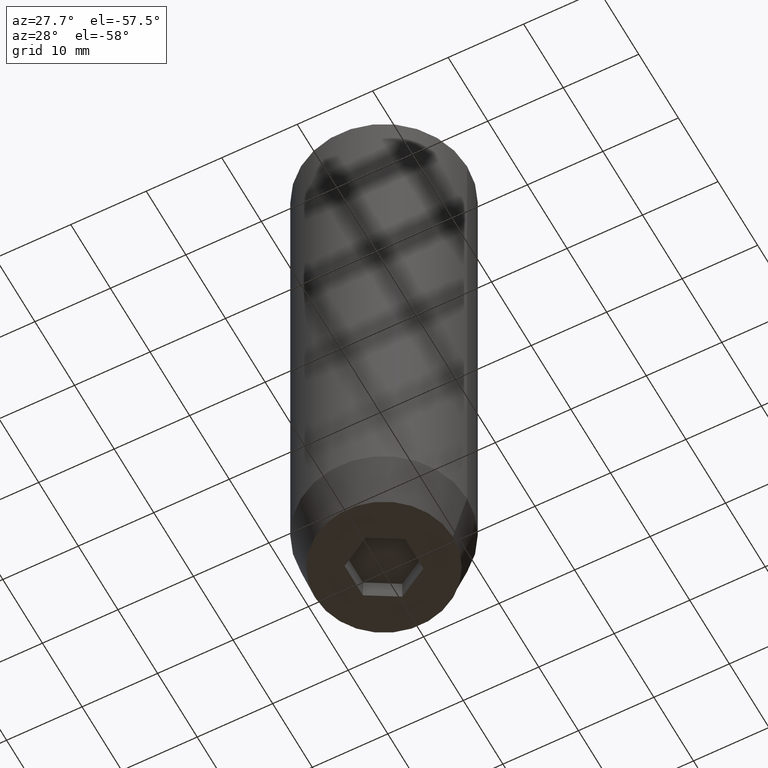
[diagram: clean part render]
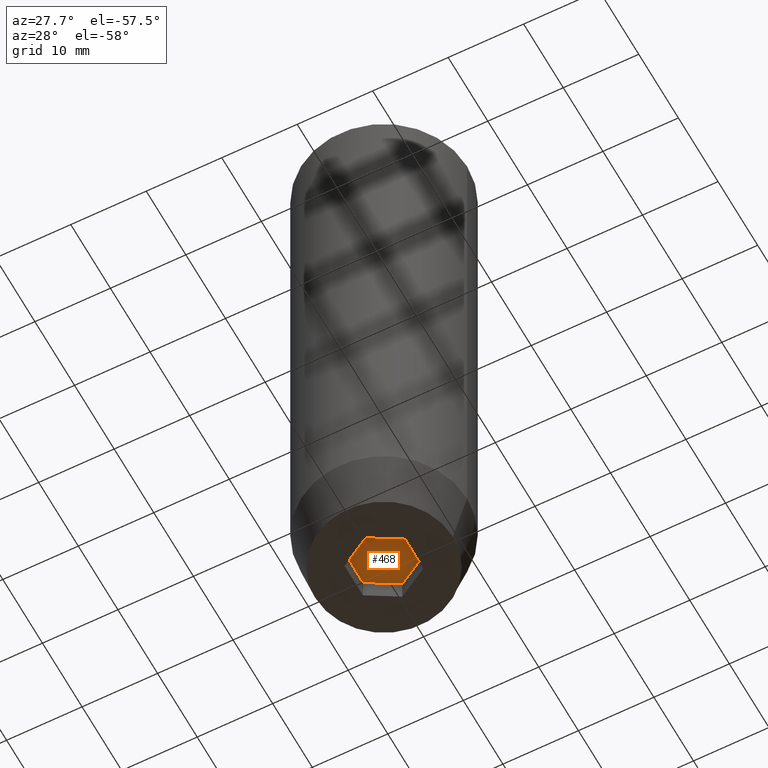
[diagram: same view with one face highlighted and labeled with its STEP entity id]
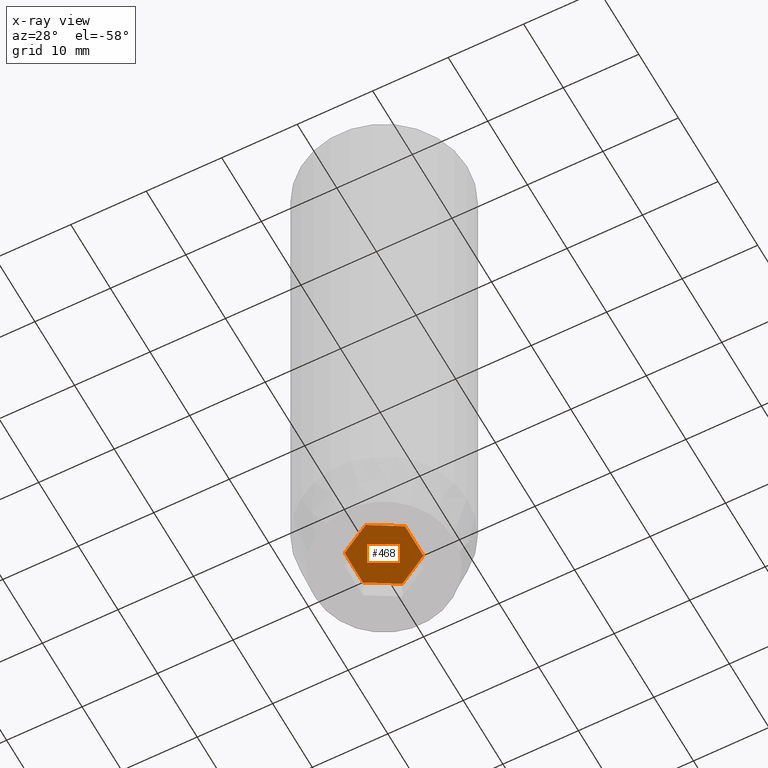
[diagram: x-ray of the same camera — body ghosted, the highlighted face saturated]
A machine part, auxiliary view. The second image highlights one B-rep face of the part: STEP entity #468.
The next image is the same camera in x-ray: the body ghosted, the highlighted face saturated — about 0% of this face is hidden behind the body in this view.
In plain terms, the highlighted planar face has unit normal (0, 0, -1).
Its self-contained STEP definition (entity closure, byte-faithful):
#15 = CARTESIAN_POINT ( 'NONE',  ( 2.000000000000000444, 3.464101615137754386, -77.20000000000001705 ) ) ;
#17 = VERTEX_POINT ( 'NONE', #396 ) ;
#22 = EDGE_CURVE ( 'NONE', #160, #135, #353, .T. ) ;
#26 = EDGE_LOOP ( 'NONE', ( #503, #431, #478, #232, #529, #328 ) ) ;
#48 = DIRECTION ( 'NONE',  ( -0.8660254037844384856, 0.5000000000000002220, 0.000000000000000000 ) ) ;
#78 = CARTESIAN_POINT ( 'NONE',  ( -2.000000000000000000, 3.464101615137754830, -77.20000000000001705 ) ) ;
#81 = CARTESIAN_POINT ( 'NONE',  ( 2.000000000000000888, -3.464101615137754386, -77.20000000000001705 ) ) ;
#82 = EDGE_CURVE ( 'NONE', #561, #579, #96, .T. ) ;
#85 = VECTOR ( 'NONE', #355, 1000.000000000000000 ) ;
#95 = DIRECTION ( 'NONE',  ( 0.8660254037844385966, -0.5000000000000001110, 0.000000000000000000 ) ) ;
#96 = LINE ( 'NONE', #101, #248 ) ;
#101 = CARTESIAN_POINT ( 'NONE',  ( 4.000000000000000000, 0.000000000000000000, -77.20000000000001705 ) ) ;
#135 = VERTEX_POINT ( 'NONE', #277 ) ;
#148 = VECTOR ( 'NONE', #537, 1000.000000000000114 ) ;
#160 = VERTEX_POINT ( 'NONE', #492 ) ;
#163 = VECTOR ( 'NONE', #48, 1000.000000000000114 ) ;
#186 = CARTESIAN_POINT ( 'NONE',  ( 4.000000000000000000, 2.309401076758503368, -77.20000000000001705 ) ) ;
#194 = LINE ( 'NONE', #15, #378 ) ;
#221 = EDGE_CURVE ( 'NONE', #579, #257, #356, .T. ) ;
#226 = CARTESIAN_POINT ( 'NONE',  ( 0.000000000000000000, 0.000000000000000000, -77.20000000000001705 ) ) ;
#232 = ORIENTED_EDGE ( 'NONE', *, *, #221, .T. ) ;
#248 = VECTOR ( 'NONE', #476, 1000.000000000000000 ) ;
#257 = VERTEX_POINT ( 'NONE', #276 ) ;
#263 = CARTESIAN_POINT ( 'NONE',  ( -2.000000000000000888, -3.464101615137754386, -77.20000000000001705 ) ) ;
#271 = DIRECTION ( 'NONE',  ( 0.000000000000000000, 0.000000000000000000, -1.000000000000000000 ) ) ;
#276 = CARTESIAN_POINT ( 'NONE',  ( 4.336808689942017736E-16, -4.618802153517006737, -77.20000000000001705 ) ) ;
#277 = CARTESIAN_POINT ( 'NONE',  ( 0.000000000000000000, 4.618802153517006737, -77.20000000000001705 ) ) ;
#308 = LINE ( 'NONE', #263, #163 ) ;
#316 = CARTESIAN_POINT ( 'NONE',  ( -4.000000000000000000, 0.000000000000000000, -77.20000000000001705 ) ) ;
#328 = ORIENTED_EDGE ( 'NONE', *, *, #449, .T. ) ;
#353 = LINE ( 'NONE', #78, #475 ) ;
#355 = DIRECTION ( 'NONE',  ( 0.000000000000000000, 1.000000000000000000, 0.000000000000000000 ) ) ;
#356 = LINE ( 'NONE', #81, #148 ) ;
#378 = VECTOR ( 'NONE', #95, 1000.000000000000000 ) ;
#396 = CARTESIAN_POINT ( 'NONE',  ( -4.000000000000000000, -2.309401076758503368, -77.20000000000001705 ) ) ;
#400 = FACE_OUTER_BOUND ( 'NONE', #26, .T. ) ;
#416 = LINE ( 'NONE', #316, #85 ) ;
#431 = ORIENTED_EDGE ( 'NONE', *, *, #586, .T. ) ;
#449 = EDGE_CURVE ( 'NONE', #17, #160, #416, .T. ) ;
#450 = EDGE_CURVE ( 'NONE', #257, #17, #308, .T. ) ;
#456 = DIRECTION ( 'NONE',  ( -1.000000000000000000, 0.000000000000000000, -0.000000000000000000 ) ) ;
#468 = ADVANCED_FACE ( 'NONE', ( #400 ), #587, .T. ) ;
#475 = VECTOR ( 'NONE', #538, 999.9999999999998863 ) ;
#476 = DIRECTION ( 'NONE',  ( 0.000000000000000000, -1.000000000000000000, 0.000000000000000000 ) ) ;
#478 = ORIENTED_EDGE ( 'NONE', *, *, #82, .T. ) ;
#492 = CARTESIAN_POINT ( 'NONE',  ( -4.000000000000000000, 2.309401076758503368, -77.20000000000001705 ) ) ;
#503 = ORIENTED_EDGE ( 'NONE', *, *, #22, .T. ) ;
#511 = CARTESIAN_POINT ( 'NONE',  ( 4.000000000000000000, -2.309401076758502480, -77.20000000000001705 ) ) ;
#529 = ORIENTED_EDGE ( 'NONE', *, *, #450, .T. ) ;
#537 = DIRECTION ( 'NONE',  ( -0.8660254037844384856, -0.5000000000000002220, 0.000000000000000000 ) ) ;
#538 = DIRECTION ( 'NONE',  ( 0.8660254037844387076, 0.5000000000000001110, 0.000000000000000000 ) ) ;
#561 = VERTEX_POINT ( 'NONE', #186 ) ;
#566 = AXIS2_PLACEMENT_3D ( 'NONE', #226, #271, #456 ) ;
#579 = VERTEX_POINT ( 'NONE', #511 ) ;
#586 = EDGE_CURVE ( 'NONE', #135, #561, #194, .T. ) ;
#587 = PLANE ( 'NONE',  #566 ) ;